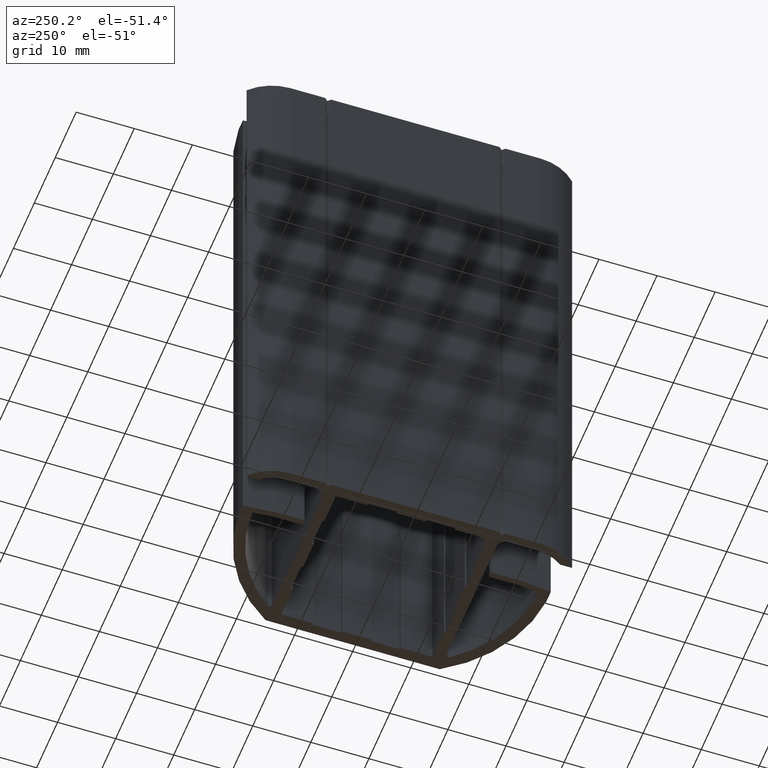
[diagram: clean part render]
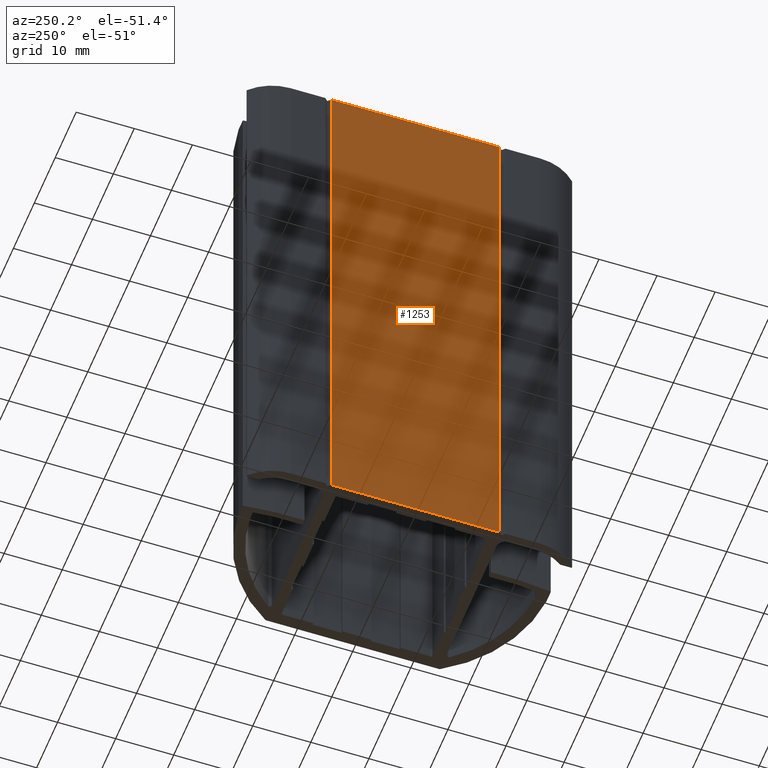
[diagram: same view with one face highlighted and labeled with its STEP entity id]
A machine part, auxiliary view. The second image highlights one B-rep face of the part: STEP entity #1253.
In plain terms, the highlighted planar face has unit normal (-1, 0, 0).
Its self-contained STEP definition (entity closure, byte-faithful):
#1197=CARTESIAN_POINT('',(0.0,14.499472180258806,-100.0));
#1198=VERTEX_POINT('',#1197);
#1205=CARTESIAN_POINT('',(0.0,14.499472180258806,0.0));
#1206=VERTEX_POINT('',#1205);
#1207=CARTESIAN_POINT('',(0.0,14.499472180258806,-100.0));
#1208=DIRECTION('',(0.0,0.0,1.0));
#1209=VECTOR('',#1208,100.0);
#1210=LINE('',#1207,#1209);
#1211=EDGE_CURVE('',#1198,#1206,#1210,.T.);
#1223=CARTESIAN_POINT('',(0.0,14.499472180258806,-100.0));
#1224=DIRECTION('',(-1.0,0.0,0.0));
#1225=DIRECTION('',(0.0,-1.0,0.0));
#1226=AXIS2_PLACEMENT_3D('',#1223,#1224,#1225);
#1227=PLANE('',#1226);
#1228=CARTESIAN_POINT('',(0.0,-14.499472180258778,-100.0));
#1229=VERTEX_POINT('',#1228);
#1230=CARTESIAN_POINT('',(0.0,14.499472180258806,-100.0));
#1231=DIRECTION('',(0.0,-1.0,0.0));
#1232=VECTOR('',#1231,28.998944360517584);
#1233=LINE('',#1230,#1232);
#1234=EDGE_CURVE('',#1198,#1229,#1233,.T.);
#1235=ORIENTED_EDGE('',*,*,#1234,.T.);
#1236=CARTESIAN_POINT('',(0.0,-14.499472180258778,0.0));
#1237=VERTEX_POINT('',#1236);
#1238=CARTESIAN_POINT('',(0.0,-14.499472180258778,-100.0));
#1239=DIRECTION('',(0.0,0.0,1.0));
#1240=VECTOR('',#1239,100.0);
#1241=LINE('',#1238,#1240);
#1242=EDGE_CURVE('',#1229,#1237,#1241,.T.);
#1243=ORIENTED_EDGE('',*,*,#1242,.T.);
#1244=CARTESIAN_POINT('',(0.0,14.499472180258806,0.0));
#1245=DIRECTION('',(0.0,-1.0,0.0));
#1246=VECTOR('',#1245,28.998944360517584);
#1247=LINE('',#1244,#1246);
#1248=EDGE_CURVE('',#1206,#1237,#1247,.T.);
#1249=ORIENTED_EDGE('',*,*,#1248,.F.);
#1250=ORIENTED_EDGE('',*,*,#1211,.F.);
#1251=EDGE_LOOP('',(#1235,#1243,#1249,#1250));
#1252=FACE_OUTER_BOUND('',#1251,.T.);
#1253=ADVANCED_FACE('',(#1252),#1227,.T.);